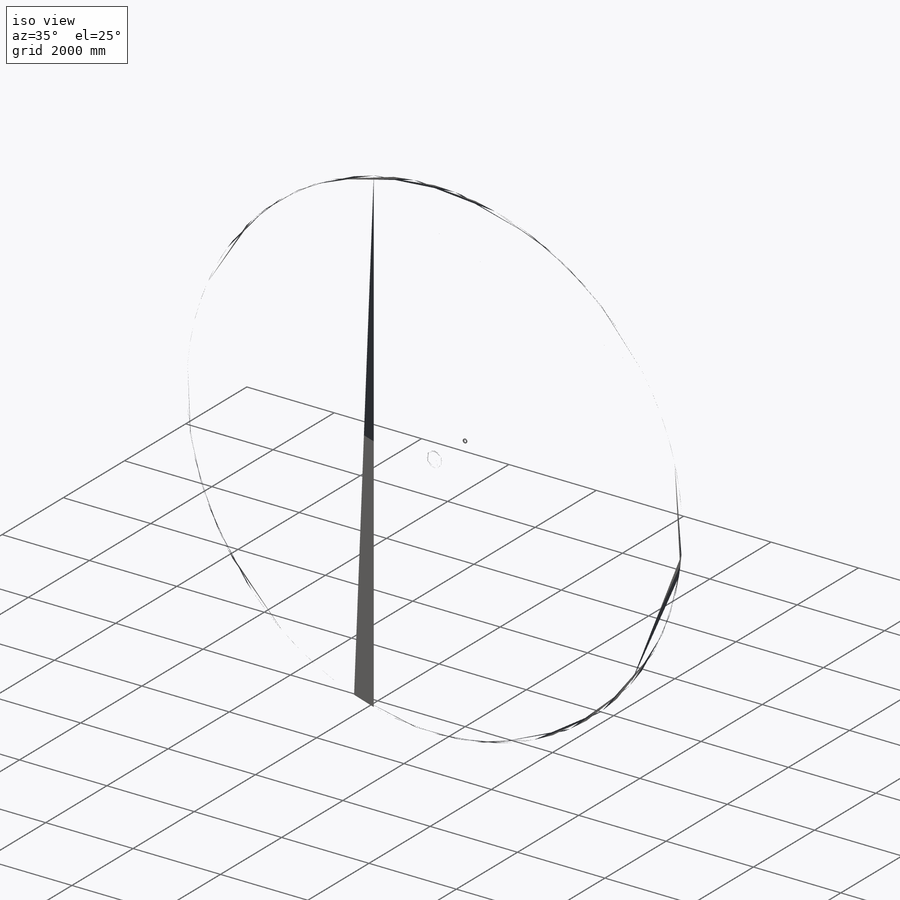
[diagram: iso view]
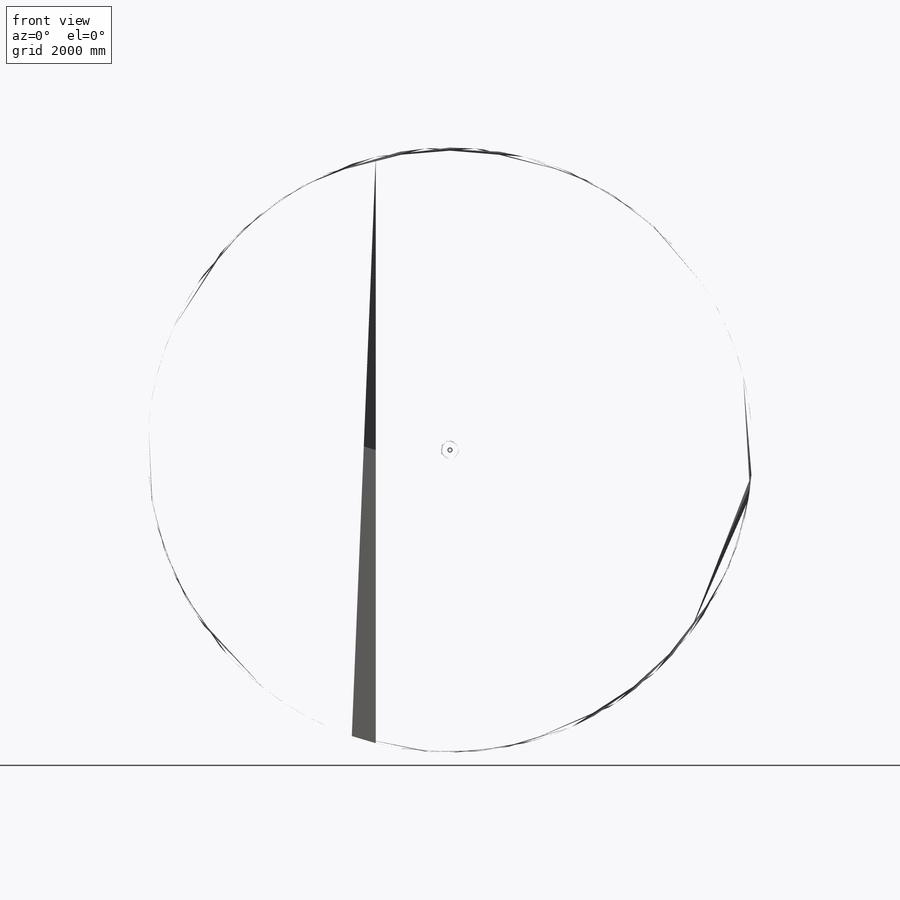
[diagram: front view]
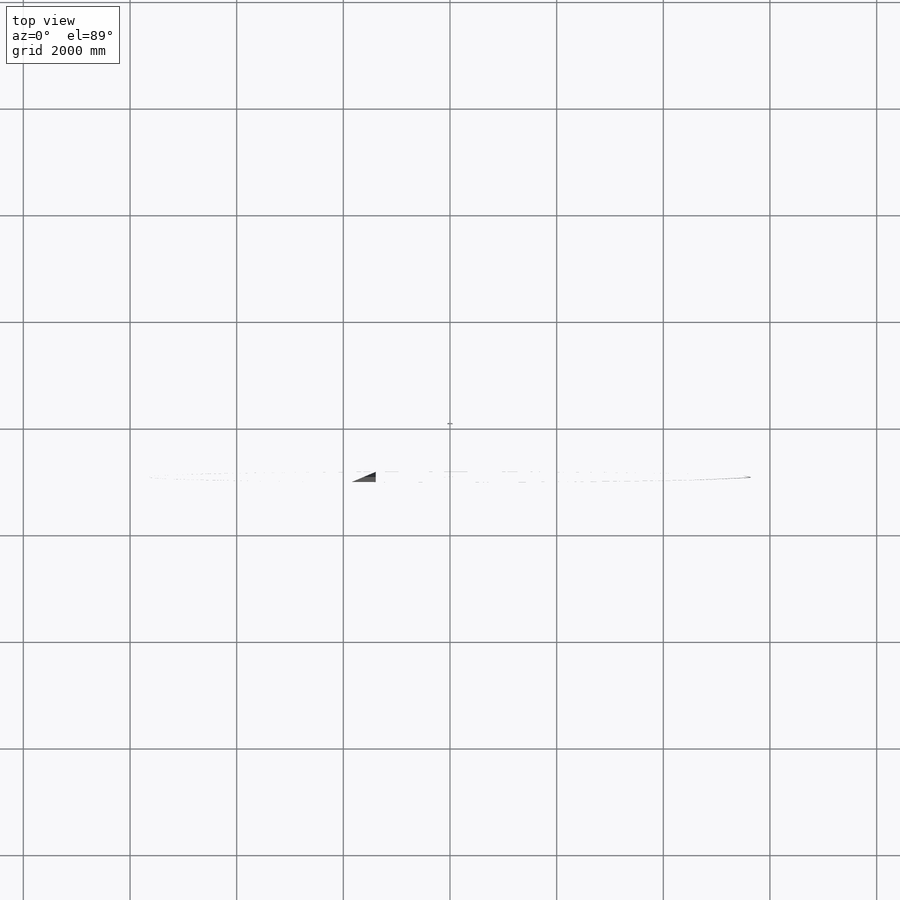
[diagram: top view]
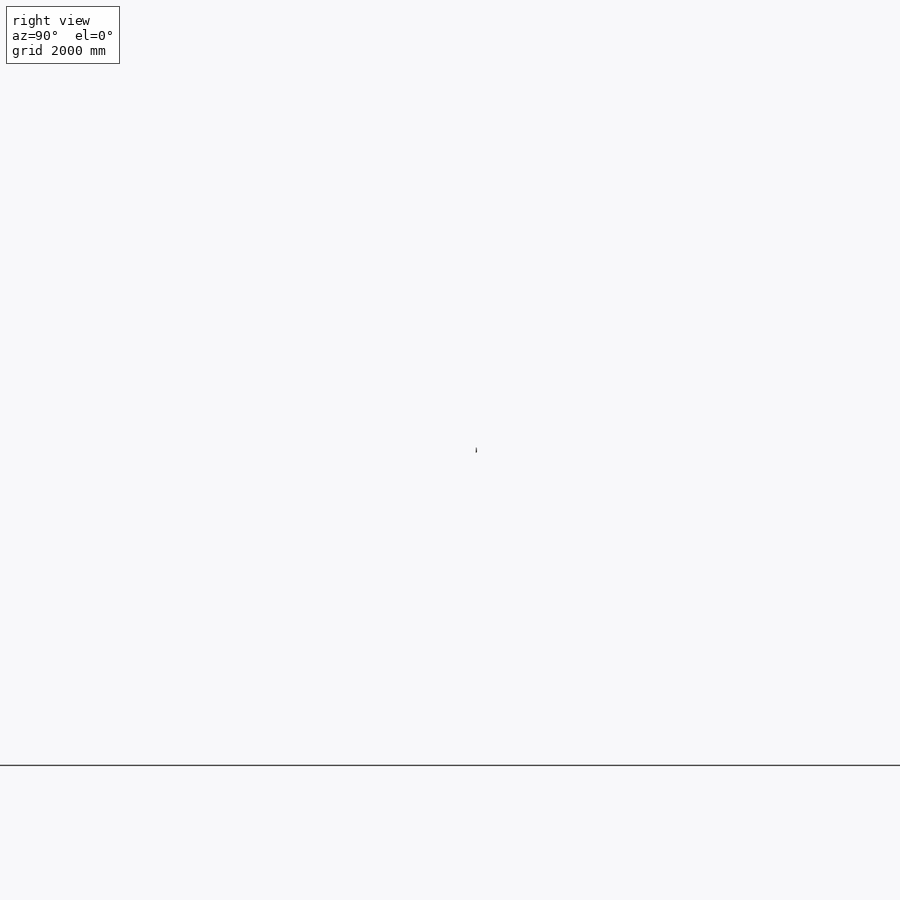
[diagram: right view]
SOLIDWORKS PART (.sldprt)
format: sldprt  version: not decoded by parser v0  size: 717,312 bytes
history: native  units: mm
features: sketch x6, revolve x5, fillet x3, pattern_circular x2, material x1, cut_revolve x1, delete_body x1 (+12 scaffold rows collapsed)
feature tree (31):
  scaffold x12  (default folders/planes/origin — collapsed)
  material  "Cast Alloy Steel"
  sketch  "Sketch1"  dims[c1.Width=21.9456mm c1.OD=96.8375mm c1.Shaft Dia=57.15mm c1.D1=~30.006373mm c2.D1=80.0deg c2.D2=16.5625mm c2.D3=45.0mm c3.D2=19.875mm c3.D3=45.0mm c3.D4=11.25mm c3.D5=5.3mm c3.D6=1.0mm c3.D1=53.0mm c4.D1=100.0deg c4.D2=~19.84375mm c4.D3=7.9375mm c4.D4=~25.003125mm c4.Outer Wd=15.875mm c4.Bearing Wd=33.3375mm c5.Bearing Wd=~21.00072mm]
  revolve  "Revolve1"  Angle=360deg
  sketch  "Sketch5"
  revolve  "Revolve4"  Angle=360deg
  sketch  "Sketch2"  dims[c1.D1=~11.336856mm c1.D2=~5.789452mm c2.D1=~7.719269mm]
  revolve  "Revolve2"  Angle=360deg
  sketch  "Sketch3"
  cut_revolve  "Cut-Revolve1"  Angle=360deg
  sketch  "Sketch4"  dims[D1=0.254mm]
  revolve  "Revolve3"  Angle=360deg
  pattern_circular  "CirPattern1"  Count=12 Angle=30deg
  pattern_circular  "CirPattern2"  Count=12 Angle=30deg Rollers=12
  fillet  "Fillet1"  Radius=0.396875mm
  fillet  "Fillet2"  Radius=0.396875mm
  sketch  "Sketch6"  dims[D1=50.8mm]
  revolve  "Revolve5"  Angle=360deg
  fillet  "Fillet3"  Radius=0.396875mm
  delete_body  "Body-Delete1"
decode coverage: 15 of 18 modeling features carry decoded parameters
note: ~ marks probable driven/reference dimensions
note: suppression state not decoded; provenance and decode notes live in map.json
